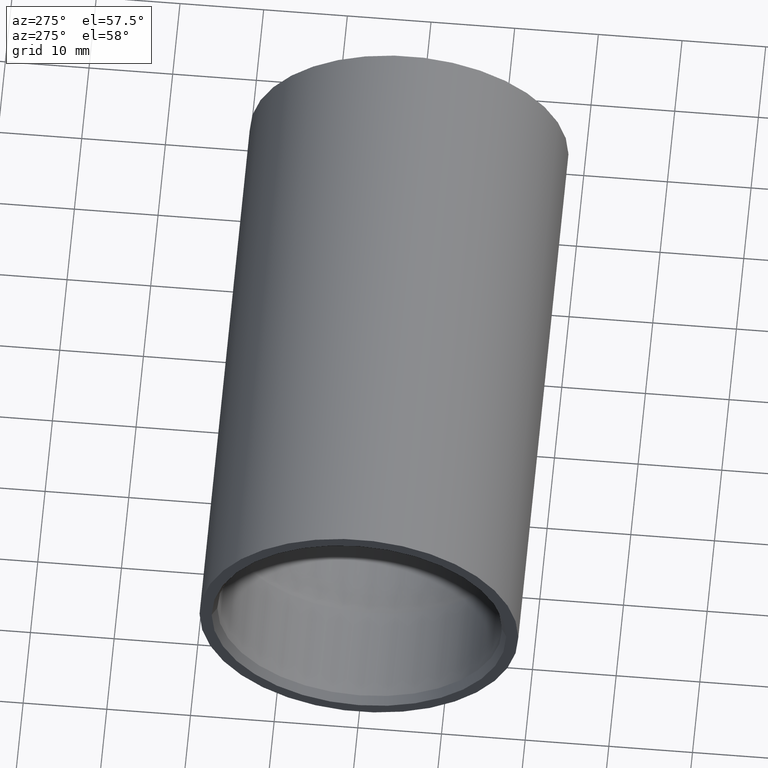
[diagram: clean part render]
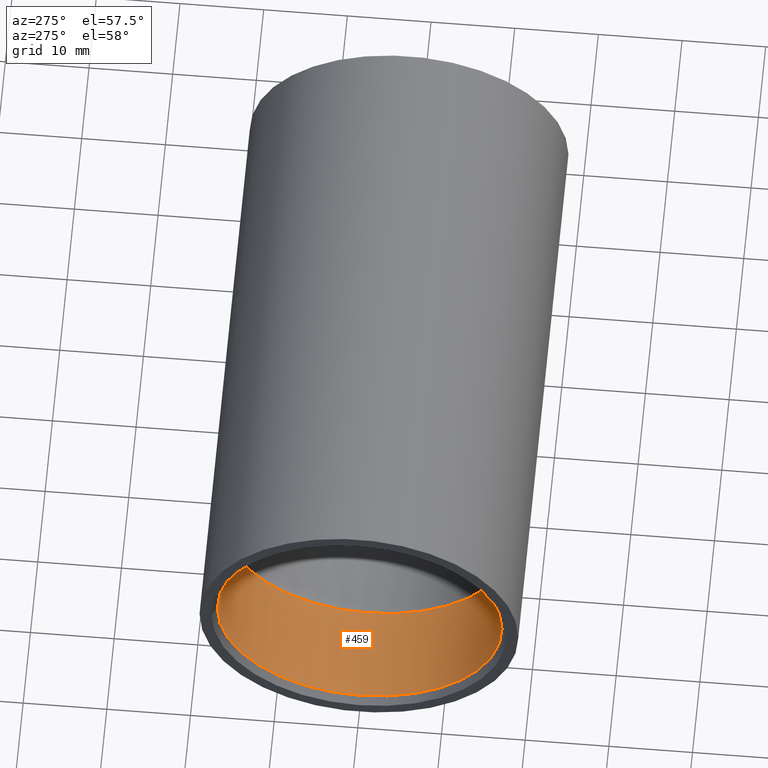
[diagram: same view with one face highlighted and labeled with its STEP entity id]
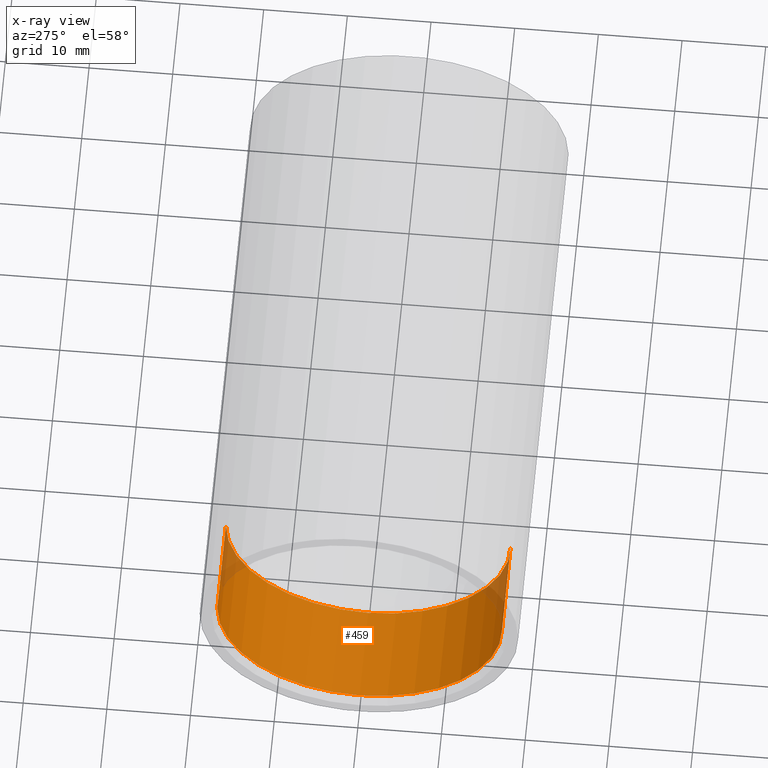
[diagram: x-ray of the same camera — body ghosted, the highlighted face saturated]
A machine part, auxiliary view. The second image highlights one B-rep face of the part: STEP entity #459.
The next image is the same camera in x-ray: the body ghosted, the highlighted face saturated — about 5% of this face is hidden behind the body in this view.
In plain terms, the highlighted cylindrical surface (partial cylindrical patch) has radius 17.018 mm, axis along (1, 0, -0).
Its self-contained STEP definition (entity closure, byte-faithful):
#15 = DIRECTION ( 'NONE',  ( 1.000000000000000000, 1.139601642983670200E-016, -0.0000000000000000000 ) ) ;
#18 = LINE ( 'NONE', #157, #680 ) ;
#42 = CARTESIAN_POINT ( 'NONE',  ( 0.0000000000000000000, 0.0000000000000000000, 0.0000000000000000000 ) ) ;
#43 = CARTESIAN_POINT ( 'NONE',  ( -2.657000000000000500, -3.027921565407612500E-016, 0.0000000000000000000 ) ) ;
#49 = VECTOR ( 'NONE', #483, 39.37007874015748100 ) ;
#60 = EDGE_CURVE ( 'NONE', #660, #175, #411, .T. ) ;
#91 = ORIENTED_EDGE ( 'NONE', *, *, #134, .T. ) ;
#134 = EDGE_CURVE ( 'NONE', #545, #271, #636, .T. ) ;
#150 = AXIS2_PLACEMENT_3D ( 'NONE', #442, #15, #380 ) ;
#157 = CARTESIAN_POINT ( 'NONE',  ( 7.635331007995186000E-017, -0.6700000000004031600, 8.205133554292203400E-017 ) ) ;
#175 = VERTEX_POINT ( 'NONE', #180 ) ;
#179 = ORIENTED_EDGE ( 'NONE', *, *, #526, .F. ) ;
#180 = CARTESIAN_POINT ( 'NONE',  ( -2.657000000000000500, -0.6700000000004035000, 8.205133554292203400E-017 ) ) ;
#227 = FACE_OUTER_BOUND ( 'NONE', #509, .T. ) ;
#271 = VERTEX_POINT ( 'NONE', #520 ) ;
#303 = EDGE_CURVE ( 'NONE', #175, #545, #18, .T. ) ;
#319 = AXIS2_PLACEMENT_3D ( 'NONE', #42, #573, #455 ) ;
#356 = DIRECTION ( 'NONE',  ( -1.000000000000000000, -1.139601642983659100E-016, -0.0000000000000000000 ) ) ;
#363 = CARTESIAN_POINT ( 'NONE',  ( -2.197000000000000100, -0.6700000000004035000, 8.205133554292203400E-017 ) ) ;
#380 = DIRECTION ( 'NONE',  ( 0.0000000000000000000, 1.000000000000000000, 0.0000000000000000000 ) ) ;
#381 = ORIENTED_EDGE ( 'NONE', *, *, #303, .T. ) ;
#407 = DIRECTION ( 'NONE',  ( 1.000000000000000000, 1.139601642983670200E-016, -0.0000000000000000000 ) ) ;
#411 = CIRCLE ( 'NONE', #618, 0.6700000000004031600 ) ;
#415 = CARTESIAN_POINT ( 'NONE',  ( -2.657000000000000500, 0.6700000000004029400, 0.0000000000000000000 ) ) ;
#417 = CARTESIAN_POINT ( 'NONE',  ( -7.635331007995186000E-017, 0.6700000000004031600, 0.0000000000000000000 ) ) ;
#442 = CARTESIAN_POINT ( 'NONE',  ( -2.197000000000000100, -2.503704809635123700E-016, 0.0000000000000000000 ) ) ;
#455 = DIRECTION ( 'NONE',  ( -1.139601642983670500E-016, 1.000000000000000000, 0.0000000000000000000 ) ) ;
#459 = ADVANCED_FACE ( 'NONE', ( #227 ), #498, .F. ) ;
#473 = ORIENTED_EDGE ( 'NONE', *, *, #60, .T. ) ;
#478 = LINE ( 'NONE', #417, #49 ) ;
#483 = DIRECTION ( 'NONE',  ( 1.000000000000000000, 1.139601642983670200E-016, -0.0000000000000000000 ) ) ;
#498 = CYLINDRICAL_SURFACE ( 'NONE', #319, 0.6700000000004031600 ) ;
#509 = EDGE_LOOP ( 'NONE', ( #473, #381, #91, #179 ) ) ;
#520 = CARTESIAN_POINT ( 'NONE',  ( -2.197000000000000100, 0.6700000000004029400, 0.0000000000000000000 ) ) ;
#526 = EDGE_CURVE ( 'NONE', #660, #271, #478, .T. ) ;
#545 = VERTEX_POINT ( 'NONE', #363 ) ;
#573 = DIRECTION ( 'NONE',  ( 1.000000000000000000, 1.139601642983670200E-016, -0.0000000000000000000 ) ) ;
#618 = AXIS2_PLACEMENT_3D ( 'NONE', #43, #356, #682 ) ;
#636 = CIRCLE ( 'NONE', #150, 0.6700000000004031600 ) ;
#660 = VERTEX_POINT ( 'NONE', #415 ) ;
#680 = VECTOR ( 'NONE', #407, 39.37007874015748100 ) ;
#682 = DIRECTION ( 'NONE',  ( 0.0000000000000000000, -1.000000000000000000, 0.0000000000000000000 ) ) ;